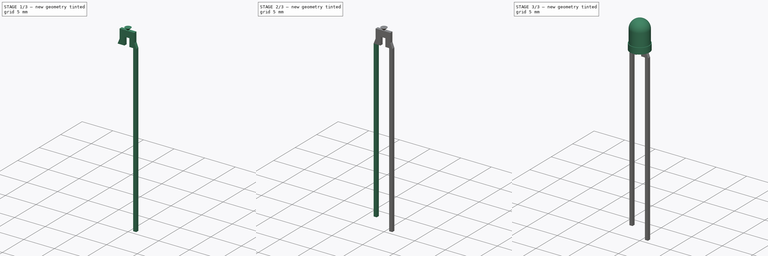
[diagram: build sequence overview — one tinted view per stage of 3, left to right]
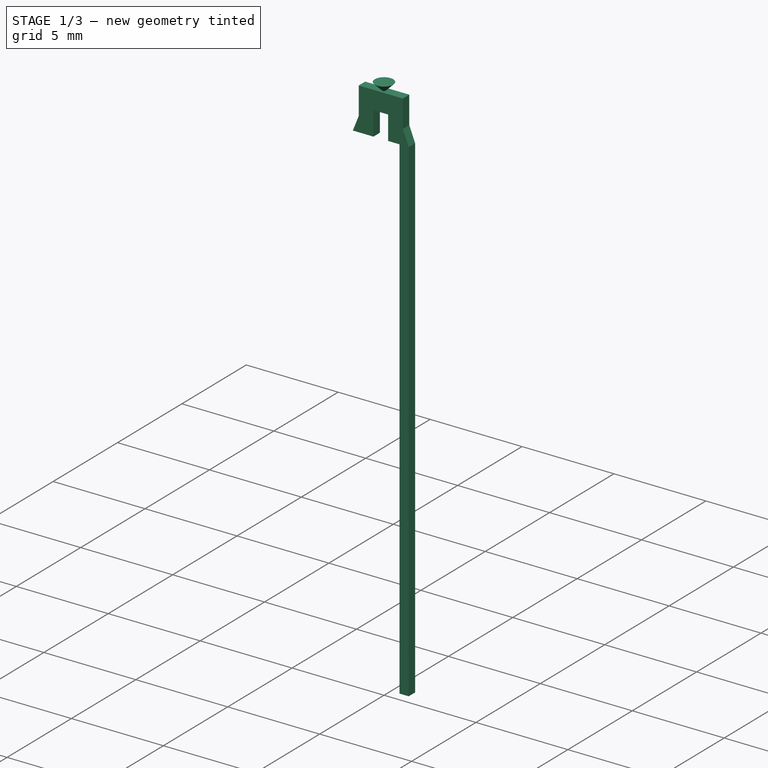
[diagram: stage 1 of 3 — iso view after this stage's code; geometry added in this stage tinted green]
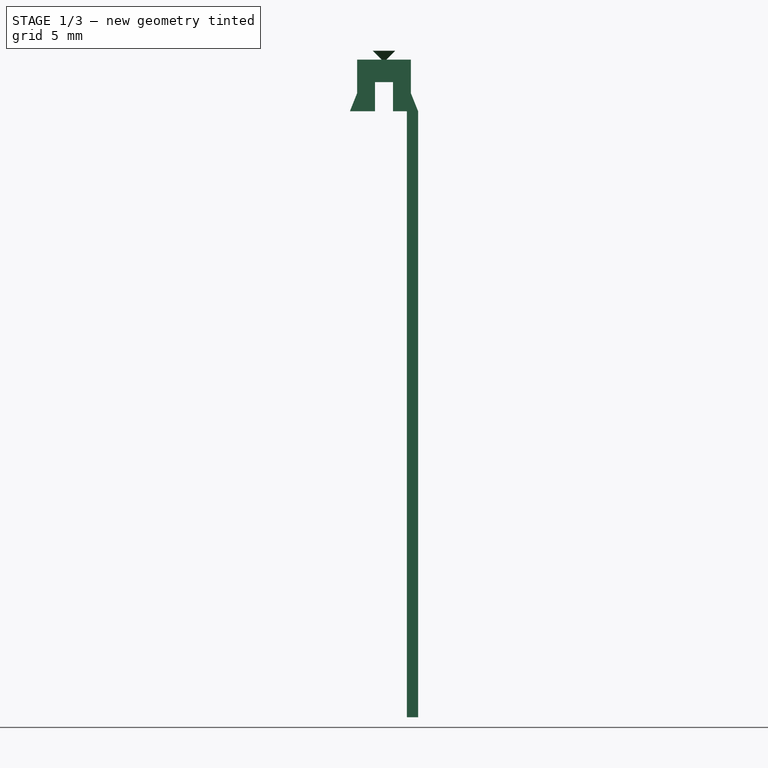
[diagram: stage 1 of 3 — front view after this stage's code; geometry added in this stage tinted green]
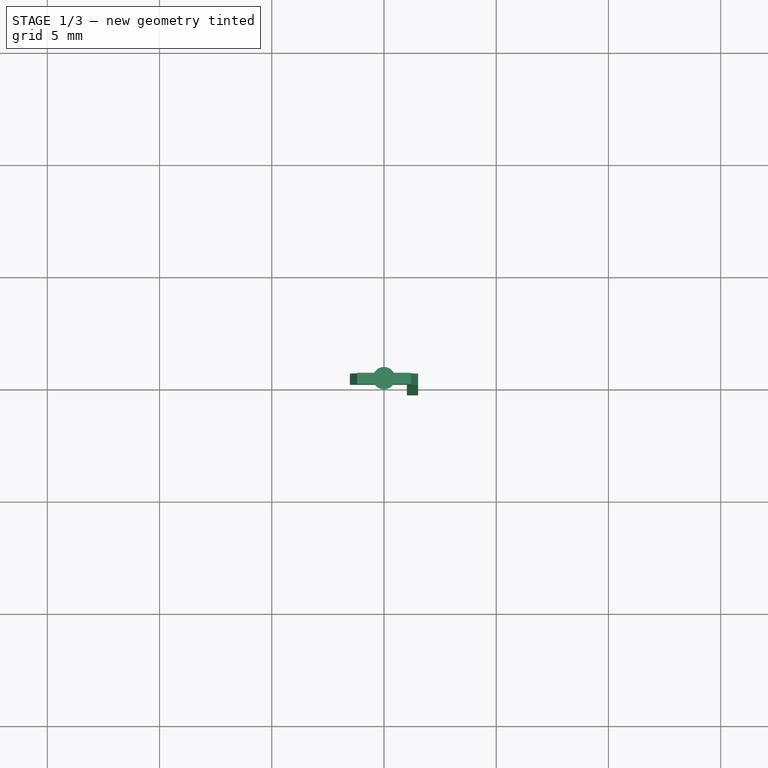
[diagram: stage 1 of 3 — top view after this stage's code; geometry added in this stage tinted green]
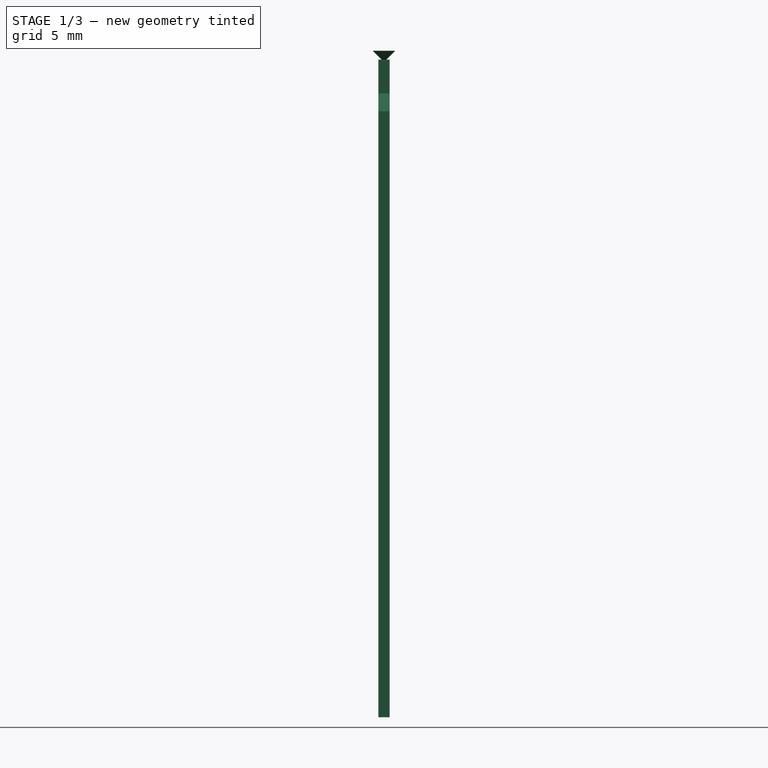
[diagram: stage 1 of 3 — right view after this stage's code; geometry added in this stage tinted green]
FCSTD DOCUMENT  (FreeCAD 0.17R13522 (Git))
Label: KINGBRIGHT-LED-D3-L934L
License: All rights reserved
LicenseURL: http://en.wikipedia.org/wiki/All_rights_reserved
objects: Sketcher::SketchObject×6, PartDesign::Pad×4, PartDesign::Body×4, PartDesign::Revolution×2, PartDesign::Fillet×2, Spreadsheet::Sheet×1, App::MeasureDistance×1
note: 24 computed .brp shape members not serialized (recipe doc carries the construction recipe); baked Part::Feature solids carry a one-line shape summary decoded from their .brp

FEATURE [PartDesign::Body] Body
  Group = -> [Sketch,Revolution,Sketch001,Pad]
  Origin = -> Origin
  Tip = -> Pad
FEATURE [Sketcher::SketchObject] Sketch005
  MapMode = 5
  Placement = pos=(0,0,0) rot=(1,0,0;1.5708rad)
  Support = -> [XZ_Plane001]
  expr: Constraints[9] = Spreadsheet.d_wire
  expr: Constraints[8] = Spreadsheet.d_wire
  sketch-geometry (3):
    g0: LineSegment StartX=0 StartY=0.4 StartZ=0 EndX=0 EndY=0.9 EndZ=0
    g1: LineSegment StartX=0 StartY=0.9 StartZ=0 EndX=0.5 EndY=0.9 EndZ=0
    g2: LineSegment StartX=0.5 StartY=0.9 StartZ=0 EndX=0 EndY=0.4 EndZ=0
  constraints (10):
    c: Vertical(g0)
    c: PointOnObject(g1,g0)
    c: Horizontal(g1)
    c: Coincident(g2,g1)
    c: Coincident(g1,g0)
    c: Coincident(g2,g0)
    c: PointOnObject(g0,g-2)
    c: DistanceY(g0,g-1) = -0.4
    c: DistanceX(g1,g1) = 0.5
    c: DistanceY(g0,g0) = 0.5
FEATURE [Sketcher::SketchObject] Sketch006
  MapMode = 5
  Placement = pos=(0,0,0) rot=(1,0,0;1.5708rad)
  Support = -> [XZ_Plane001]
  expr: Constraints[21] = Spreadsheet.height_bottom * 1.5
  expr: Constraints[26] = Spreadsheet.height_bottom / 2
  expr: Constraints[24] = -Spreadsheet.height_bottom / 2
  expr: Constraints[3] = Spreadsheet.RM / 2 + Spreadsheet.d_wire / 2
  sketch-geometry (10):
    g0: LineSegment StartX=-0.4 StartY=-0.5 StartZ=0 EndX=-0.4 EndY=-1.8 EndZ=0
    g1: LineSegment StartX=-0.4 StartY=-1.8 StartZ=0 EndX=-1.52 EndY=-1.8 EndZ=0
    g2: LineSegment StartX=-1.52 StartY=-1.8 StartZ=0 EndX=-1.2 EndY=-1 EndZ=0
    g3: LineSegment StartX=-1.2 StartY=-1 StartZ=0 EndX=-1.2 EndY=0.5 EndZ=0
    g4: LineSegment StartX=-1.2 StartY=0.5 StartZ=0 EndX=1.2 EndY=0.5 EndZ=0
    g5: LineSegment StartX=1.2 StartY=0.5 StartZ=0 EndX=1.2 EndY=-1 EndZ=0
    g6: LineSegment StartX=1.2 StartY=-1 StartZ=0 EndX=1.52 EndY=-1.8 EndZ=0
    g7: LineSegment StartX=1.52 StartY=-1.8 StartZ=0 EndX=0.4 EndY=-1.8 EndZ=0
    g8: LineSegment StartX=0.4 StartY=-1.8 StartZ=0 EndX=0.4 EndY=-0.5 EndZ=0
    g9: LineSegment StartX=0.4 StartY=-0.5 StartZ=0 EndX=-0.4 EndY=-0.5 EndZ=0
  constraints (27):
    c: Vertical(g0)
    c: Coincident(g1,g0)
    c: Horizontal(g1)
    c: DistanceX(g1,g-1) = 1.52
    c: Coincident(g4,g3)
    c: Coincident(g5,g4)
    c: Vertical(g5)
    c: Coincident(g7,g6)
    c: Horizontal(g7)
    c: Vertical(g8)
    c: Coincident(g9,g8)
    c: Coincident(g9,g0)
    c: Coincident(g6,g5)
    c: Coincident(g8,g7)
    c: Horizontal(g7,g0)
    c: Symmetric(g0,g8,g-2)
    c: Symmetric(g6,g1,g-2)
    c: Symmetric(g5,g2,g-2)
    c: Symmetric(g4,g3,g-2)
    c: DistanceY(g1,g2) = 0.8
    c: Coincident(g2,g3)
    c: DistanceY(g3,g3) = 1.5
    c: Coincident(g2,g1)
    c: DistanceX(g0) = -0.4
    c: DistanceY(g0) = -0.5
    c: DistanceX(g3) = -1.2
    c: DistanceY(g3) = 0.5
FEATURE [PartDesign::Pad] Pad004
  Length = 0.5
  Length2 = 100
  Midplane = true
  Placement = pos=(0,0,0) rot=(1,0,0;1.5708rad)
  Profile = -> Sketch006
  Reversed = true
  Type = 0
  expr: Length = Spreadsheet.d_wire
FEATURE [PartDesign::Body] Body002  label="pin1"
  Group = -> [Sketch003,Pad002,Fillet]
  Origin = -> Origin002
  Tip = -> Fillet
FEATURE [PartDesign::Revolution] Revolution001
  Angle = 360
  Axis = (0,0,1)
  Base = (0,0,0)
  BaseFeature = -> Pad004
  Placement = pos=(0,0,0) rot=(1,0,0;1.5708rad)
  Profile = -> Sketch005
  ReferenceAxis = -> Sketch005 [V_Axis]
  Reversed = true
FEATURE [PartDesign::Body] Body001  label="junction"
  Group = -> [Sketch005,Sketch006,Pad004,Revolution001]
  Origin = -> Origin001
  Tip = -> Revolution001
FEATURE [Sketcher::SketchObject] Sketch004
  MapMode = 5
  Placement = pos=(0,0,-1.8) rot=(1,0,0;3.14159rad)
  Support = -> [Revolution001]
  expr: Constraints[11] = Spreadsheet.RM / 2 - Spreadsheet.d_wire / 2
  expr: Constraints[9] = Spreadsheet.d_wire
  expr: Constraints[8] = Spreadsheet.d_wire
  sketch-geometry (4):
    g0: LineSegment StartX=1.02 StartY=0.25 StartZ=0 EndX=1.52 EndY=0.25 EndZ=0
    g1: LineSegment StartX=1.52 StartY=0.25 StartZ=0 EndX=1.52 EndY=-0.25 EndZ=0
    g2: LineSegment StartX=1.52 StartY=-0.25 StartZ=0 EndX=1.02 EndY=-0.25 EndZ=0
    g3: LineSegment StartX=1.02 StartY=-0.25 StartZ=0 EndX=1.02 EndY=0.25 EndZ=0
  constraints (12):
    c: Coincident(g0,g1)
    c: Coincident(g1,g2)
    c: Coincident(g2,g3)
    c: Coincident(g3,g0)
    c: Horizontal(g0)
    c: Horizontal(g2)
    c: Vertical(g1)
    c: Vertical(g3)
    c: DistanceX(g0,g0) = 0.5
    c: DistanceY(g3,g3) = 0.5
    c: Symmetric(g0,g1,g-1)
    c: DistanceX(g-1,g0) = 1.02
FEATURE [PartDesign::Pad] Pad003
  Length = 27
  Length2 = 100
  Placement = pos=(0,0,0) rot=(1,0,0;1.5708rad)
  Profile = -> Sketch004
  Type = 0
  expr: Length = Spreadsheet.pin2_length
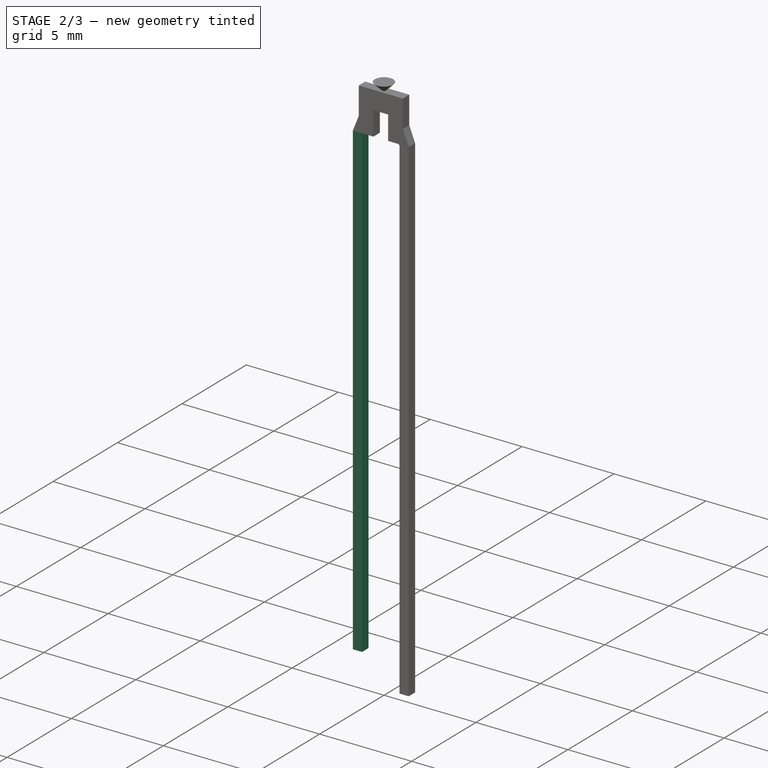
[diagram: stage 2 of 3 — iso view after this stage's code; geometry added in this stage tinted green]
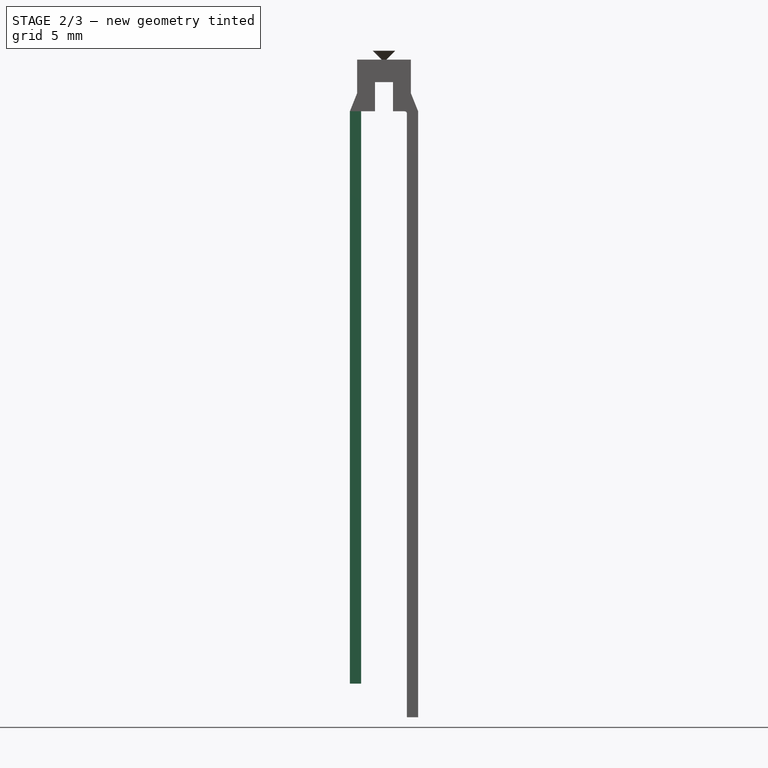
[diagram: stage 2 of 3 — front view after this stage's code; geometry added in this stage tinted green]
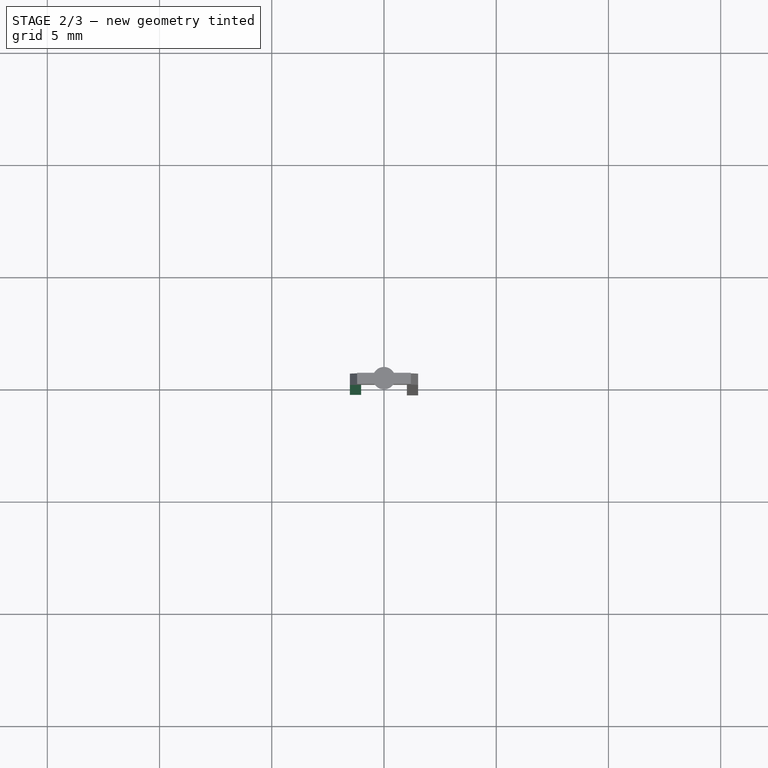
[diagram: stage 2 of 3 — top view after this stage's code; geometry added in this stage tinted green]
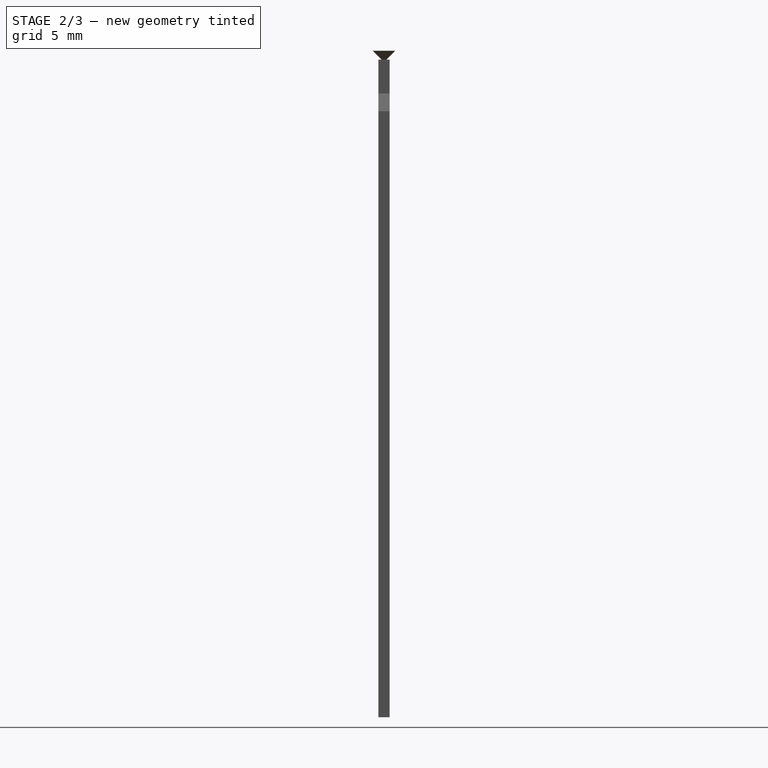
[diagram: stage 2 of 3 — right view after this stage's code; geometry added in this stage tinted green]
FEATURE [Sketcher::SketchObject] Sketch003
  MapMode = 5
  Placement = pos=(0,0,-1.8) rot=(1,0,0;3.14159rad)
  Support = -> [Pad004]
  expr: Constraints[11] = Spreadsheet.RM / 2 - Spreadsheet.d_wire / 2
  expr: Constraints[9] = Spreadsheet.d_wire
  expr: Constraints[8] = Spreadsheet.d_wire
  sketch-geometry (4):
    g0: LineSegment StartX=-1.52 StartY=0.25 StartZ=0 EndX=-1.02 EndY=0.25 EndZ=0
    g1: LineSegment StartX=-1.02 StartY=0.25 StartZ=0 EndX=-1.02 EndY=-0.25 EndZ=0
    g2: LineSegment StartX=-1.02 StartY=-0.25 StartZ=0 EndX=-1.52 EndY=-0.25 EndZ=0
    g3: LineSegment StartX=-1.52 StartY=-0.25 StartZ=0 EndX=-1.52 EndY=0.25 EndZ=0
  constraints (12):
    c: Coincident(g0,g1)
    c: Coincident(g1,g2)
    c: Coincident(g2,g3)
    c: Coincident(g3,g0)
    c: Horizontal(g0)
    c: Horizontal(g2)
    c: Vertical(g1)
    c: Vertical(g3)
    c: DistanceX(g0,g0) = 0.5
    c: DistanceY(g3,g3) = 0.5
    c: Symmetric(g0,g1,g-1)
    c: DistanceX(g0,g-1) = 1.02
FEATURE [PartDesign::Pad] Pad002
  Length = 25.5
  Length2 = 100
  Placement = pos=(0,0,0) rot=(1,0,0;1.5708rad)
  Profile = -> Sketch003
  Type = 0
  expr: Length = Spreadsheet.pin1_length
FEATURE [PartDesign::Fillet] Fillet001
  Base = -> Pad003 [Edge29]
  BaseFeature = -> Pad003
  Placement = pos=(0,0,0) rot=(1,0,0;1.5708rad)
  Radius = 0.1
FEATURE [PartDesign::Body] Body003  label="pin2"
  Group = -> [Sketch004,Pad003,Fillet001]
  Origin = -> Origin003
  Tip = -> Fillet001
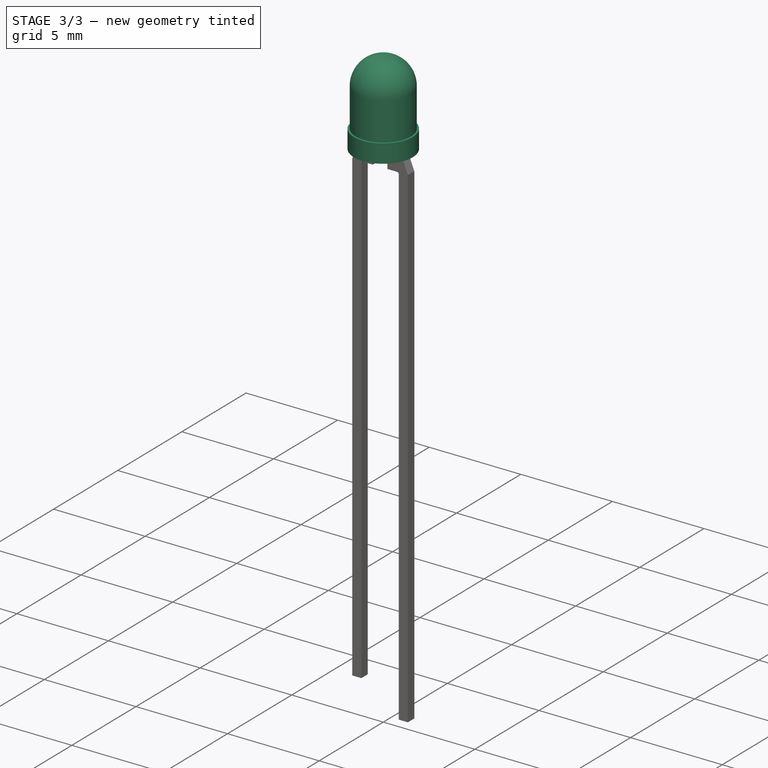
[diagram: stage 3 of 3 — iso view after this stage's code; geometry added in this stage tinted green]
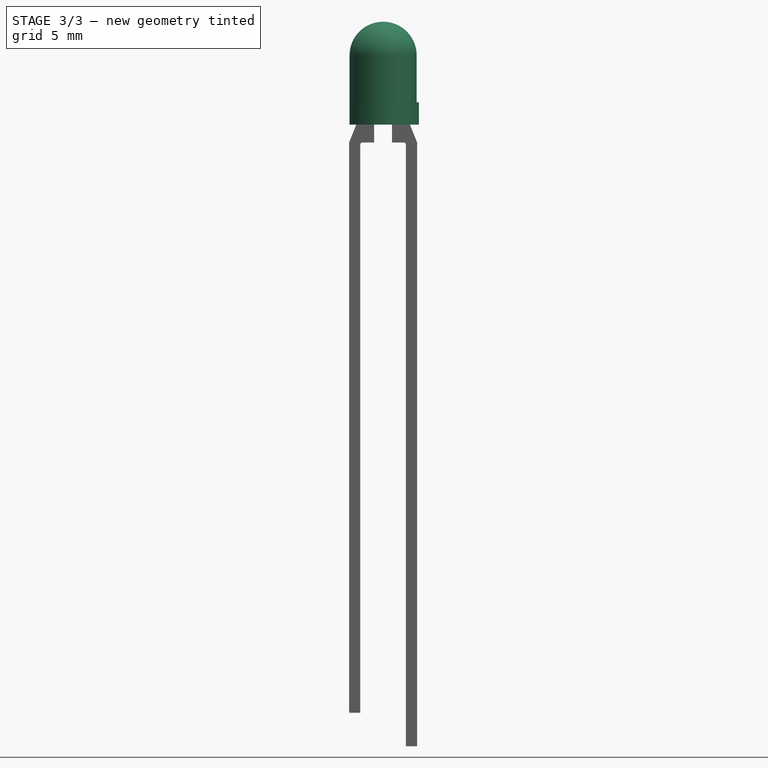
[diagram: stage 3 of 3 — front view after this stage's code; geometry added in this stage tinted green]
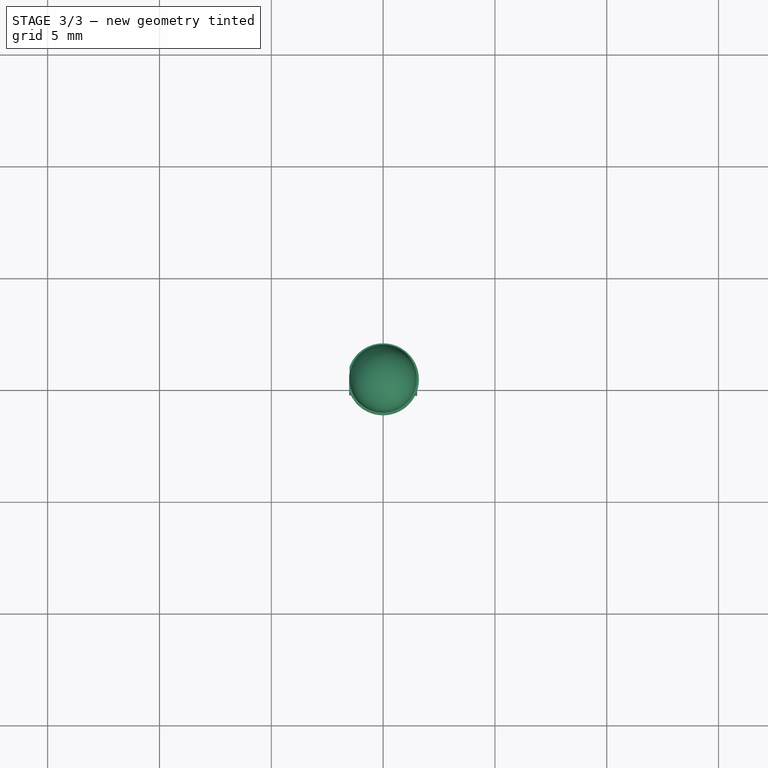
[diagram: stage 3 of 3 — top view after this stage's code; geometry added in this stage tinted green]
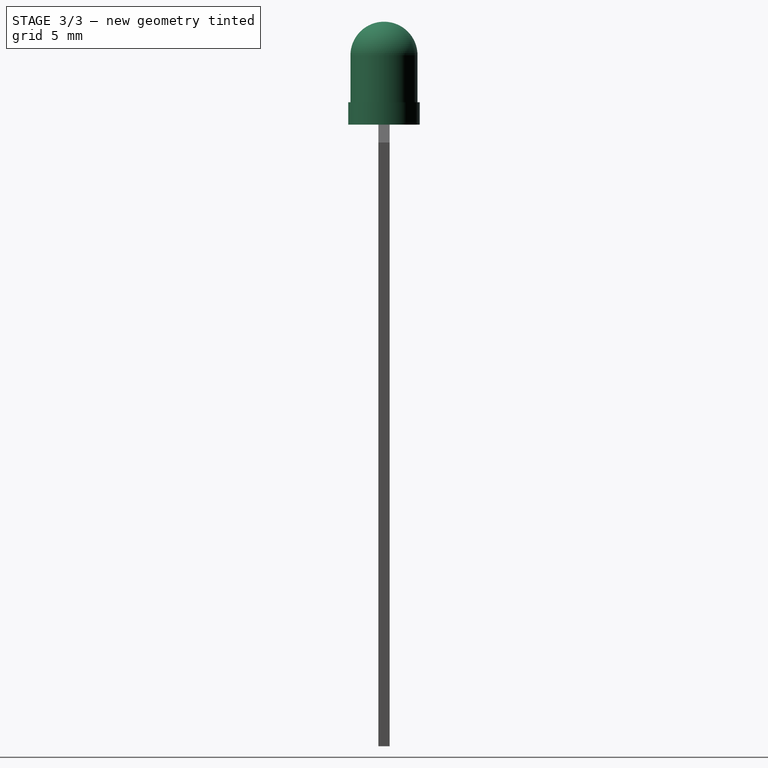
[diagram: stage 3 of 3 — right view after this stage's code; geometry added in this stage tinted green]
FEATURE [Sketcher::SketchObject] Sketch
  MapMode = 5
  Placement = pos=(0,0,0) rot=(1,0,0;1.5708rad)
  Support = -> [XZ_Plane]
  expr: Constraints[8] = Spreadsheet.din / 2
  expr: Constraints[9] = Spreadsheet.height - Spreadsheet.height_bottom
  sketch-geometry (4):
    g0: LineSegment StartX=0 StartY=0 StartZ=0 EndX=1.5 EndY=0 EndZ=0
    g1: LineSegment StartX=1.5 StartY=0 StartZ=0 EndX=1.5 EndY=2.1 EndZ=0
    g2: ArcOfCircle CenterX=0 CenterY=2.1 CenterZ=0 NormalX=0 NormalY=0 NormalZ=1 AngleXU=0 Radius=1.5 StartAngle=-1e-12 EndAngle=1.5708
    g3: LineSegment StartX=0 StartY=3.6 StartZ=0 EndX=0 EndY=0 EndZ=0
  constraints (11):
    c: Coincident(g0,g-1)
    c: PointOnObject(g0,g-1)
    c: Coincident(g1,g0)
    c: Vertical(g1)
    c: PointOnObject(g2,g-2)
    c: PointOnObject(g2,g-2)
    c: Coincident(g3,g2)
    c: Coincident(g3,g-1)
    c: DistanceX(g0,g0) = 1.5
    c: DistanceY(g-1,g2) = 3.6
    c: Tangent(g2,g1) = -1.5708
FEATURE [PartDesign::Revolution] Revolution
  Angle = 360
  Axis = (0,0,1)
  Base = (0,0,0)
  Placement = pos=(0,0,0) rot=(1,0,0;1.5708rad)
  Profile = -> Sketch
  ReferenceAxis = -> Sketch [V_Axis]
  Reversed = true
FEATURE [Spreadsheet::Sheet] Spreadsheet
  cells = A1=din; B1(din)=3; A2=dout; B2(dout)=3.2000000000000002; A3=RM; B3(RM)=2.54; A4=d_wire; B4(d_wire)=0.5; A5=height; B5(height)=4.5999999999999996; A6=height_bottom; B6(height_bottom)=1; A7=pin1_length; B7(pin1_length)=25.5; A8=pin2_length; B8(pin2_length)=27
FEATURE [Sketcher::SketchObject] Sketch001
  MapMode = 5
  Placement = pos=(0,0,0) rot=(1,0,0;3.14159rad)
  Support = -> [Revolution]
  expr: Constraints[5] = Spreadsheet.dout / 2
  expr: Constraints[4] = Spreadsheet.din / 2
  sketch-geometry (2):
    g0: ArcOfCircle CenterX=0 CenterY=0 CenterZ=0 NormalX=0 NormalY=0 NormalZ=1 AngleXU=0 Radius=1.6 StartAngle=3.49701 EndAngle=9.06936
    g1: LineSegment StartX=-1.5 StartY=0.556776 StartZ=0 EndX=-1.5 EndY=-0.556776 EndZ=0
  constraints (6):
    c: Coincident(g0,g-1)
    c: Coincident(g1,g0)
    c: Coincident(g1,g0)
    c: Vertical(g1)
    c: DistanceX(g0,g-1) = 1.5
    c: Radius(g0) = 1.6
FEATURE [PartDesign::Pad] Pad
  BaseFeature = -> Revolution
  Length = 1
  Length2 = 100
  Placement = pos=(0,0,0) rot=(1,0,0;1.5708rad)
  Profile = -> Sketch001
  Type = 0
  expr: Length = Spreadsheet.height_bottom
FEATURE [App::MeasureDistance] Distance001  label="Distance: 4,60 mm"
  Distance = 4.60184
  P1 = (-0.0776385,0.10448,-1)
  P2 = (0,-4.29153e-07,3.6)
FEATURE [PartDesign::Fillet] Fillet
  Base = -> Pad002 [Edge9]
  BaseFeature = -> Pad002
  Placement = pos=(0,0,0) rot=(1,0,0;1.5708rad)
  Radius = 0.1
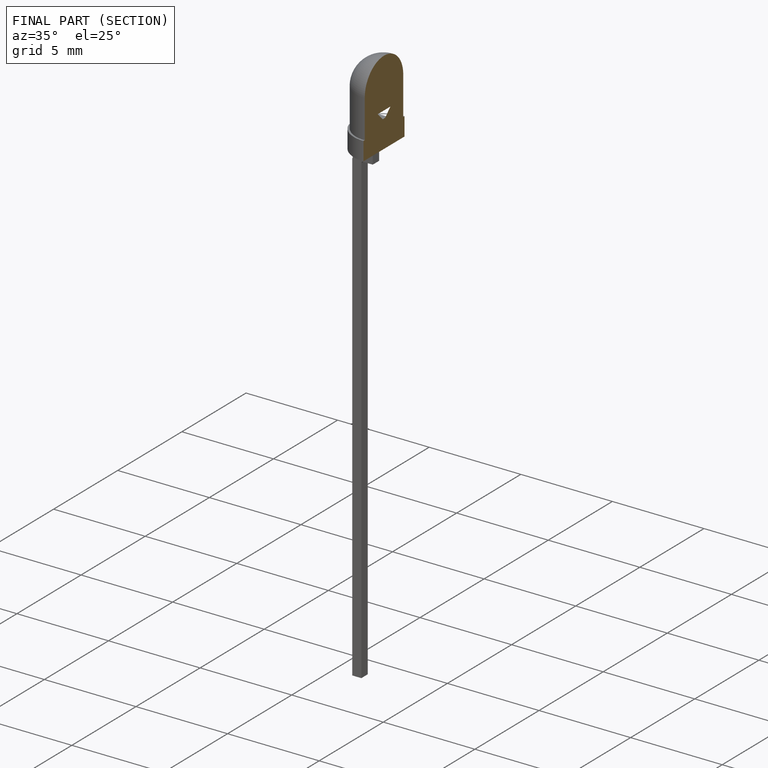
[diagram: finished part — half-section view (interior)]
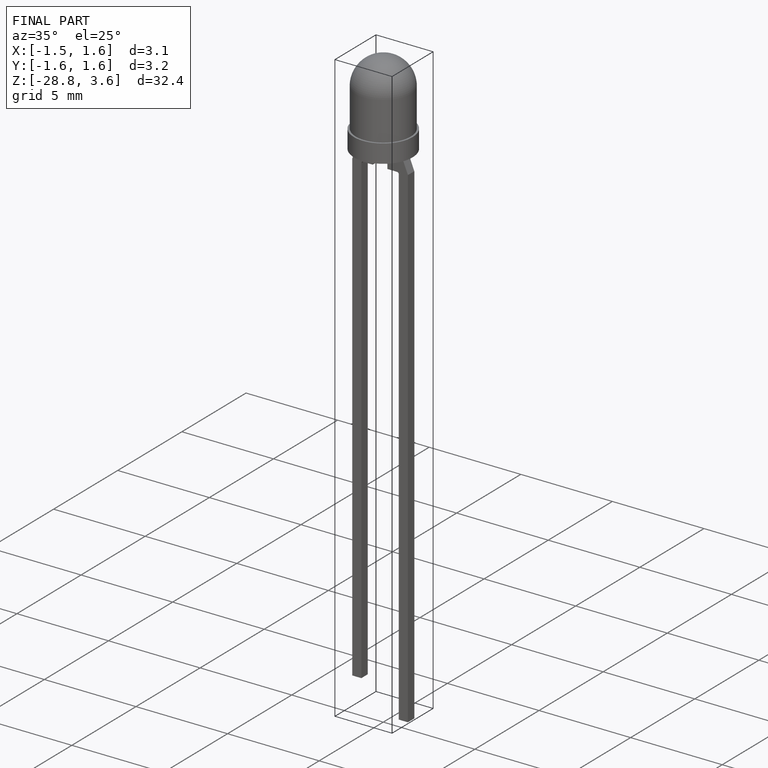
[diagram: finished part — iso view with bounding-box wireframe]
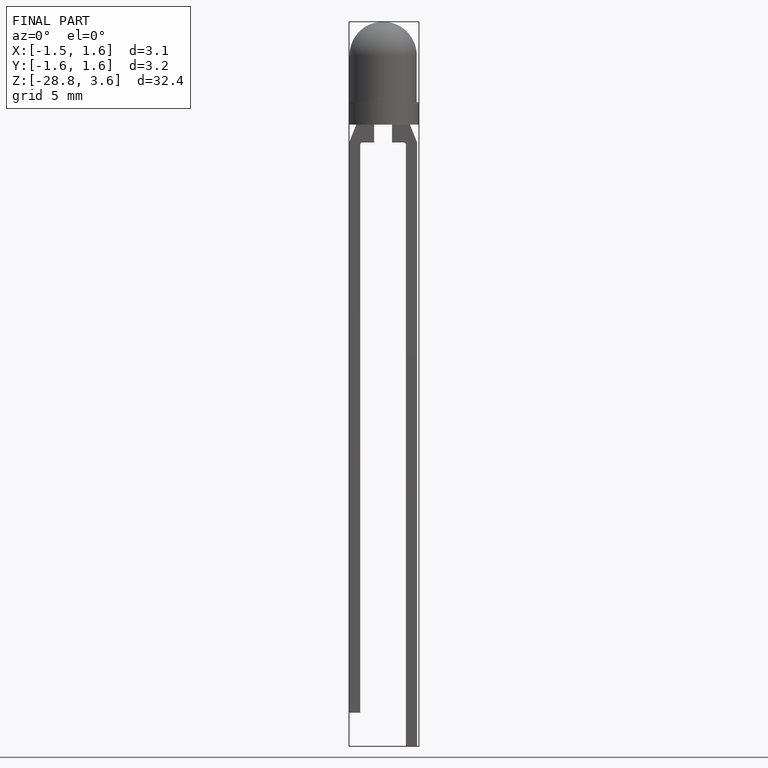
[diagram: finished part — front view with bounding-box wireframe]
